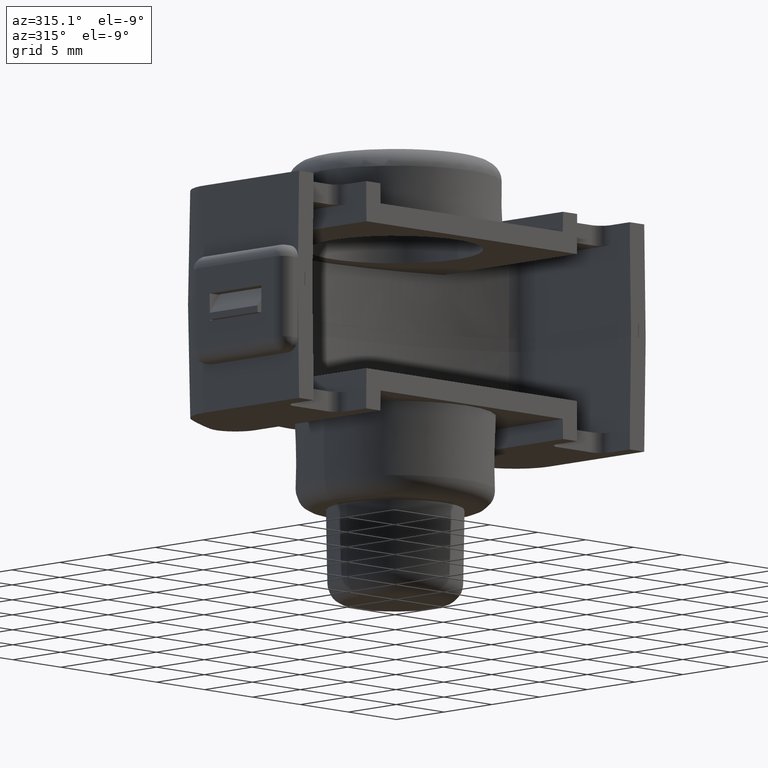
[diagram: clean part render]
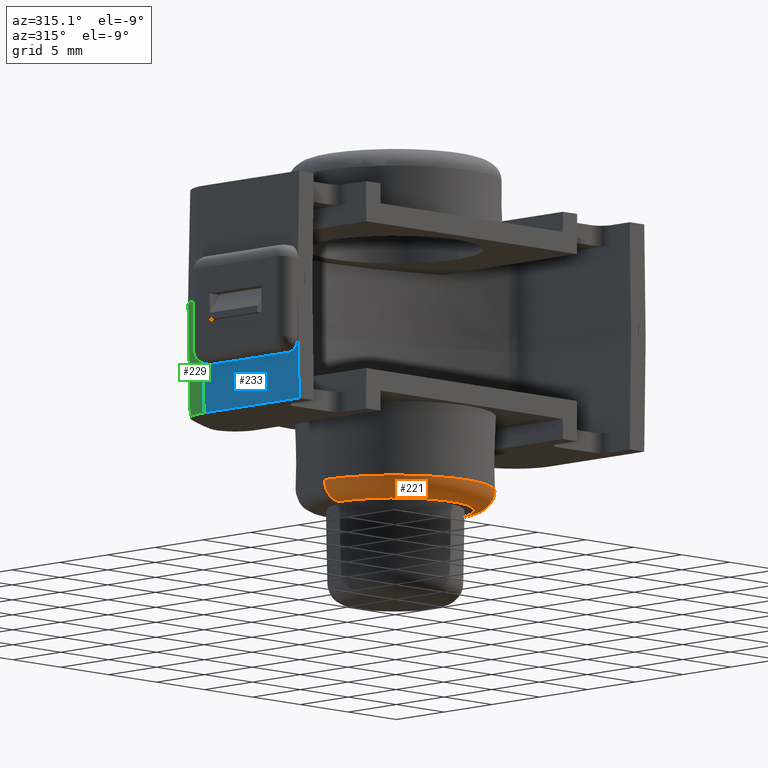
[diagram: same view with three faces highlighted in distinct colors, each labeled with its STEP entity id]
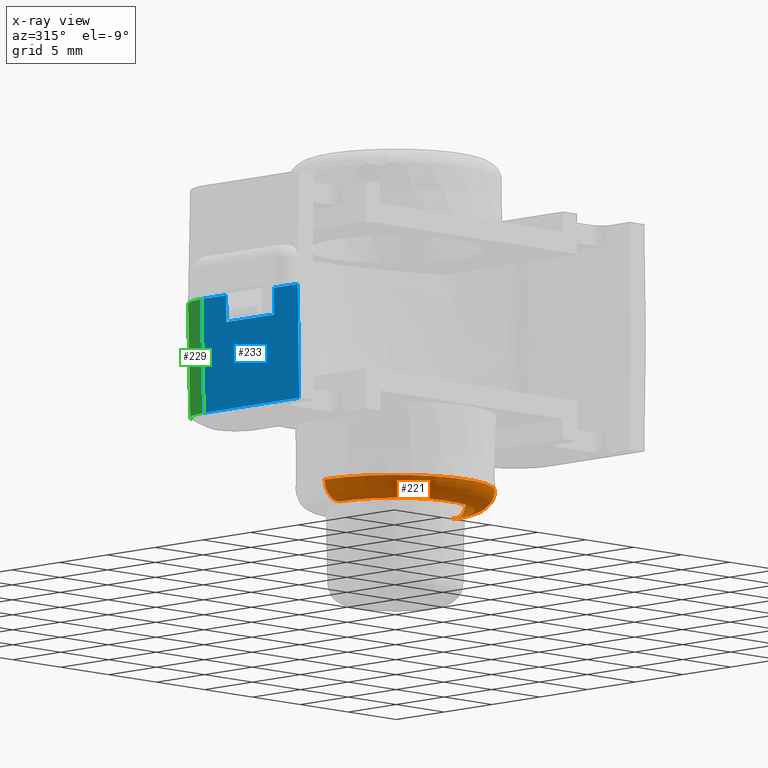
[diagram: x-ray of the same camera — body ghosted, the three highlighted faces saturated]
A machine part, auxiliary view with three faces highlighted in distinct colors.
The next image is the same camera in x-ray (body ghosted, the three faces saturated) — at least one of them is partly hidden behind the body in this view.
Their STEP definitions:

[orange] entity #221 — the highlighted toroidal blend (fillet) surface has major radius 5.8776 mm and minor (blend) radius 1.5 mm.
#221=ADVANCED_FACE('',(#554),#555,.T.);
#554=FACE_OUTER_BOUND('',#1026,.T.);
#555=TOROIDAL_SURFACE('',#1027,5.87758605343662,1.5);
#1026=EDGE_LOOP('',(#2268,#2269,#2270,#2271));
#1027=AXIS2_PLACEMENT_3D('',#2272,#2273,#2274);
#2268=ORIENTED_EDGE('',*,*,#3126,.F.);
#2269=ORIENTED_EDGE('',*,*,#3113,.F.);
#2270=ORIENTED_EDGE('',*,*,#3127,.F.);
#2271=ORIENTED_EDGE('',*,*,#3128,.F.);
#2272=CARTESIAN_POINT('',(0.0,-1.7347234759768E-15,-24.5));
#2273=DIRECTION('',(0.0,-1.22464679914735E-16,-1.0));
#2274=DIRECTION('',(1.0,0.0,0.0));
#3113=EDGE_CURVE('',#3825,#3821,#3827,.T.);
#3126=EDGE_CURVE('',#3821,#3852,#3853,.T.);
#3127=EDGE_CURVE('',#3854,#3825,#3855,.T.);
#3128=EDGE_CURVE('',#3852,#3854,#3856,.T.);
#3821=VERTEX_POINT('',#5041);
#3825=VERTEX_POINT('',#5046);
#3827=CIRCLE('',#5049,7.3773575961712);
#3852=VERTEX_POINT('',#5080);
#3853=CIRCLE('',#5081,1.5);
#3854=VERTEX_POINT('',#5082);
#3855=CIRCLE('',#5083,1.5);
#3856=CIRCLE('',#5084,5.87758605343662);
#5041=CARTESIAN_POINT('',(7.3773575961712,-8.34463694397286E-16,-24.526178609656));
#5046=CARTESIAN_POINT('',(-7.3773575961712,-1.7347234759768E-15,-24.526178609656));
#5049=AXIS2_PLACEMENT_3D('',#6032,#6033,#6034);
#5080=CARTESIAN_POINT('',(5.87758605343662,-1.7347234759768E-15,-26.0));
#5081=AXIS2_PLACEMENT_3D('',#6059,#6060,#6061);
#5082=CARTESIAN_POINT('',(-5.87758605343662,-2.63821719055434E-15,-26.0));
#5083=AXIS2_PLACEMENT_3D('',#6062,#6063,#6064);
#5084=AXIS2_PLACEMENT_3D('',#6065,#6066,#6067);
#6032=CARTESIAN_POINT('',(0.0,-1.7347234759768E-15,-24.526178609656));
#6033=DIRECTION('',(0.0,1.22464679914735E-16,1.0));
#6034=DIRECTION('',(-1.0,0.0,0.0));
#6059=CARTESIAN_POINT('',(5.87758605343662,-1.01492678127138E-15,-24.5));
#6060=DIRECTION('',(-1.22464679914735E-16,1.0,-1.22464679914735E-16));
#6061=DIRECTION('',(1.0,1.22464679914735E-16,-1.49975978266186E-32));
#6062=CARTESIAN_POINT('',(-5.87758605343662,-2.45452017068223E-15,-24.5));
#6063=DIRECTION('',(-1.22464679914735E-16,1.0,-1.22464679914735E-16));
#6064=DIRECTION('',(-1.0,-1.22464679914735E-16,1.49975978266186E-32));
#6065=CARTESIAN_POINT('',(0.0,-1.7347234759768E-15,-26.0));
#6066=DIRECTION('',(0.0,-1.22464679914735E-16,-1.0));
#6067=DIRECTION('',(1.0,0.0,0.0));

[blue] entity #233 — the highlighted planar face has unit normal (0.9998, 0, 0.0175).
#233=ADVANCED_FACE('',(#578),#579,.F.);
#578=FACE_OUTER_BOUND('',#1086,.T.);
#579=PLANE('',#1087);
#1086=EDGE_LOOP('',(#2365,#2366,#2367,#2368,#2369,#2370,#2371,#2372));
#1087=AXIS2_PLACEMENT_3D('',#2373,#2374,#2375);
#2365=ORIENTED_EDGE('',*,*,#3184,.F.);
#2366=ORIENTED_EDGE('',*,*,#3185,.T.);
#2367=ORIENTED_EDGE('',*,*,#3153,.T.);
#2368=ORIENTED_EDGE('',*,*,#3186,.F.);
#2369=ORIENTED_EDGE('',*,*,#3187,.F.);
#2370=ORIENTED_EDGE('',*,*,#3188,.T.);
#2371=ORIENTED_EDGE('',*,*,#3165,.T.);
#2372=ORIENTED_EDGE('',*,*,#3173,.T.);
#2373=CARTESIAN_POINT('',(-18.0,-8.0,-20.5));
#2374=DIRECTION('',(0.999847695156391,7.15156741356476E-17,0.0174524064372835));
#2375=DIRECTION('',(-0.0174524064372835,1.22446027950813E-16,0.999847695156391));
#3153=EDGE_CURVE('',#3903,#3901,#3904,.F.);
#3165=EDGE_CURVE('',#3926,#3924,#3927,.F.);
#3173=EDGE_CURVE('',#3924,#3939,#3941,.T.);
#3184=EDGE_CURVE('',#3959,#3939,#3960,.F.);
#3185=EDGE_CURVE('',#3959,#3903,#3961,.F.);
#3186=EDGE_CURVE('',#3962,#3901,#3963,.F.);
#3187=EDGE_CURVE('',#3964,#3962,#3965,.F.);
#3188=EDGE_CURVE('',#3964,#3926,#3966,.F.);
#3901=VERTEX_POINT('',#5148);
#3903=VERTEX_POINT('',#5151);
#3904=LINE('',#5152,#5153);
#3924=VERTEX_POINT('',#5190);
#3926=VERTEX_POINT('',#5204);
#3927=LINE('',#5205,#5206);
#3939=VERTEX_POINT('',#5229);
#3941=B_SPLINE_CURVE_WITH_KNOTS('',3,(#5242,#5243,#5244,#5245,#5246,#5247,#5248),.UNSPECIFIED.,.F.,.F.,(4,3,4),(0.0,0.00423322226499349,0.00850170459350305),.UNSPECIFIED.);
#3959=VERTEX_POINT('',#5297);
#3960=LINE('',#5298,#5299);
#3961=LINE('',#5300,#5301);
#3962=VERTEX_POINT('',#5302);
#3963=LINE('',#5303,#5304);
#3964=VERTEX_POINT('',#5305);
#3965=LINE('',#5306,#5307);
#3966=LINE('',#5308,#5309);
#5148=CARTESIAN_POINT('',(-18.1483680518898,-5.5,-12.0));
#5151=CARTESIAN_POINT('',(-18.1483680518898,-8.0,-12.0));
#5152=CARTESIAN_POINT('',(-18.1483680518898,-22.0,-12.0));
#5153=VECTOR('',#6106,1000.0);
#5190=CARTESIAN_POINT('',(-18.1483680518898,2.03685358379394,-12.0));
#5204=CARTESIAN_POINT('',(-18.1483680518898,-0.5,-12.0));
#5205=CARTESIAN_POINT('',(-18.1483680518898,-22.0,-12.0));
#5206=VECTOR('',#6124,1000.0);
#5229=CARTESIAN_POINT('',(-18.0,1.95337956964992,-20.5));
#5242=CARTESIAN_POINT('',(-18.1483680518898,2.03685358379394,-12.0));
#5243=CARTESIAN_POINT('',(-18.1237425963382,2.02302300281596,-13.410791403691));
#5244=CARTESIAN_POINT('',(-18.0991171428276,2.0091804860483,-14.821582690457));
#5245=CARTESIAN_POINT('',(-18.0744916913738,1.99532597142232,-16.2323738593849));
#5246=CARTESIAN_POINT('',(-18.0496611254876,1.98135605745393,-17.6549160262772));
#5247=CARTESIAN_POINT('',(-18.0248305616908,1.9673739449259,-19.0774580734643));
#5248=CARTESIAN_POINT('',(-18.0,1.95337956964992,-20.5));
#5297=CARTESIAN_POINT('',(-18.0,-8.0,-20.5));
#5298=CARTESIAN_POINT('',(-18.0,-22.0,-20.5));
#5299=VECTOR('',#6141,1000.0);
#5300=CARTESIAN_POINT('',(-18.0,-8.0,-20.5));
#5301=VECTOR('',#6142,1000.0);
#5302=CARTESIAN_POINT('',(-18.1134579220334,-5.5,-14.0));
#5303=CARTESIAN_POINT('',(-18.0,-5.5,-20.5));
#5304=VECTOR('',#6143,1000.0);
#5305=CARTESIAN_POINT('',(-18.1134579220334,-0.5,-14.0));
#5306=CARTESIAN_POINT('',(-18.1134579220334,-8.0,-14.0));
#5307=VECTOR('',#6144,1000.0);
#5308=CARTESIAN_POINT('',(-18.0,-0.5,-20.5));
#5309=VECTOR('',#6145,1000.0);
#6106=DIRECTION('',(6.93889390390723E-17,-1.0,1.22464679914735E-16));
#6124=DIRECTION('',(6.93889390390723E-17,-1.0,1.22464679914735E-16));
#6141=DIRECTION('',(6.93889390390723E-17,-1.0,1.22464679914735E-16));
#6142=DIRECTION('',(0.0174524064372835,-1.22446027950813E-16,-0.999847695156391));
#6143=DIRECTION('',(0.0174524064372835,-1.22446027950813E-16,-0.999847695156391));
#6144=DIRECTION('',(-6.93889390390723E-17,1.0,-1.22464679914735E-16));
#6145=DIRECTION('',(0.0174524064372835,-1.22446027950813E-16,-0.999847695156391));

[green] entity #229 — the highlighted face is a freeform B-spline surface patch.
#229=ADVANCED_FACE('',(#570),#571,.T.);
#570=FACE_OUTER_BOUND('',#1042,.T.);
#571=(B_SPLINE_SURFACE(3,2,((#1044,#1045,#1046),(#1047,#1048,#1049),(#1050,#1051,#1052),(#1053,#1054,#1055)),.UNSPECIFIED.,.F.,.F.,.F.)B_SPLINE_SURFACE_WITH_KNOTS((4,4),(3,3),(0.0509417372661507,0.0594555019583877),(0.0,1.0),.UNSPECIFIED.)RATIONAL_B_SPLINE_SURFACE(((1.0,0.87193956049328,1.0),(1.0,0.871697702394799,1.0),(1.0,0.871454467169783,1.0),(1.0,0.871209830894502,1.0)))BOUNDED_SURFACE()REPRESENTATION_ITEM('')GEOMETRIC_REPRESENTATION_ITEM()SURFACE());
#1042=EDGE_LOOP('',(#2339,#2340,#2341,#2342));
#1044=CARTESIAN_POINT('',(-16.4702710948947,5.02522093090486,-11.9880563619915));
#1045=CARTESIAN_POINT('',(-18.1482403434445,4.00220438375892,-12.0073164119262));
#1046=CARTESIAN_POINT('',(-18.1485765288668,2.03697067201106,-11.9880563619914));
#1047=CARTESIAN_POINT('',(-16.4177920646039,4.99920488846986,-14.8254094092535));
#1048=CARTESIAN_POINT('',(-18.0986996421917,3.97665540349673,-14.845501285434));
#1049=CARTESIAN_POINT('',(-18.0990503472026,2.00915504325975,-14.8254094092514));
#1050=CARTESIAN_POINT('',(-16.3652974573965,4.97314406494371,-17.6627619928907));
#1051=CARTESIAN_POINT('',(-18.0491725235018,3.95107696614489,-17.6829080149849));
#1052=CARTESIAN_POINT('',(-18.0495241736309,1.98129113734614,-17.6627619928886));
#1053=CARTESIAN_POINT('',(-16.3127870243327,4.94703794558657,-20.5001140869506));
#1054=CARTESIAN_POINT('',(-17.9996594728837,3.92546908445383,-20.5195087854216));
#1055=CARTESIAN_POINT('',(-17.9999980086049,1.95337844730995,-20.5001140869505));
#2339=ORIENTED_EDGE('',*,*,#3164,.F.);
#2340=ORIENTED_EDGE('',*,*,#3171,.F.);
#2341=ORIENTED_EDGE('',*,*,#3172,.F.);
#2342=ORIENTED_EDGE('',*,*,#3173,.F.);
#3164=EDGE_CURVE('',#3922,#3924,#3925,.T.);
#3171=EDGE_CURVE('',#3937,#3922,#3938,.T.);
#3172=EDGE_CURVE('',#3939,#3937,#3940,.T.);
#3173=EDGE_CURVE('',#3924,#3939,#3941,.T.);
#3922=VERTEX_POINT('',#5188);
#3924=VERTEX_POINT('',#5190);
#3925=B_SPLINE_CURVE_WITH_KNOTS('',3,(#5191,#5192,#5193,#5194,#5195,#5196,#5197,#5198,#5199,#5200,#5201,#5202,#5203),.UNSPECIFIED.,.F.,.F.,(4,2,2,1,2,2,4),(0.0,0.000891359895009292,0.00133703984251394,0.00178271979001859,0.00222839973752323,0.00267407968502788,0.00356543958003717),.UNSPECIFIED.);
#3937=VERTEX_POINT('',#5221);
#3938=B_SPLINE_CURVE_WITH_KNOTS('',3,(#5222,#5223,#5224,#5225,#5226,#5227,#5228),.UNSPECIFIED.,.F.,.F.,(4,3,4),(0.0,0.00700000000067198,0.00850181312088061),.UNSPECIFIED.);
#3939=VERTEX_POINT('',#5229);
#3940=B_SPLINE_CURVE_WITH_KNOTS('',3,(#5230,#5231,#5232,#5233,#5234,#5235,#5236,#5237,#5238,#5239,#5240,#5241),.UNSPECIFIED.,.F.,.F.,(4,2,2,2,2,4),(0.0,0.000894004522320041,0.00134100678348006,0.00178800904464008,0.00268201356696012,0.00357601808928016),.UNSPECIFIED.);
#3941=B_SPLINE_CURVE_WITH_KNOTS('',3,(#5242,#5243,#5244,#5245,#5246,#5247,#5248),.UNSPECIFIED.,.F.,.F.,(4,3,4),(0.0,0.00423322226499349,0.00850170459350305),.UNSPECIFIED.);
#5188=CARTESIAN_POINT('',(-16.4700501880172,5.02511141794015,-12.0));
#5190=CARTESIAN_POINT('',(-18.1483680518898,2.03685358379394,-12.0));
#5191=CARTESIAN_POINT('',(-16.4700501880172,5.02511141794015,-12.0));
#5192=CARTESIAN_POINT('',(-16.7274189333441,4.8682618831942,-12.0));
#5193=CARTESIAN_POINT('',(-16.9592890257388,4.68210439825422,-12.0));
#5194=CARTESIAN_POINT('',(-17.2700295521247,4.360266398453,-12.0));
#5195=CARTESIAN_POINT('',(-17.3679705152572,4.24488344477316,-12.0));
#5196=CARTESIAN_POINT('',(-17.5465697982878,4.00466030352424,-12.0));
#5197=CARTESIAN_POINT('',(-17.7084230196921,3.75490642455334,-12.0));
#5198=CARTESIAN_POINT('',(-17.8375225273069,3.48651132339455,-12.0));
#5199=CARTESIAN_POINT('',(-17.9498016948895,3.20854321021544,-12.0));
#5200=CARTESIAN_POINT('',(-17.9972091132949,3.06511875060286,-12.0));
#5201=CARTESIAN_POINT('',(-18.1100724220894,2.63290291242369,-12.0));
#5202=CARTESIAN_POINT('',(-18.1483680518899,2.33825104873686,-12.0));
#5203=CARTESIAN_POINT('',(-18.1483680518898,2.03685358379394,-12.0));
#5221=CARTESIAN_POINT('',(-16.312789135722,4.94703899528615,-20.5));
#5222=CARTESIAN_POINT('',(-16.312789135722,4.94703899528615,-20.5));
#5223=CARTESIAN_POINT('',(-16.3559625517885,4.96850311667543,-18.1671648594194));
#5224=CARTESIAN_POINT('',(-16.3991252723722,4.98993661963489,-15.8343292389617));
#5225=CARTESIAN_POINT('',(-16.4422774362287,5.01133979081355,-13.5014931451677));
#5226=CARTESIAN_POINT('',(-16.4515355056351,5.01593172842641,-13.0009954518908));
#5227=CARTESIAN_POINT('',(-16.4607930891126,5.02052226986758,-12.5004977368136));
#5228=CARTESIAN_POINT('',(-16.4700501880172,5.0251114179402,-12.0));
#5229=CARTESIAN_POINT('',(-18.0,1.95337956964992,-20.5));
#5230=CARTESIAN_POINT('',(-18.0,1.95337956964992,-20.5));
#5231=CARTESIAN_POINT('',(-18.0,2.25567128574872,-20.5));
#5232=CARTESIAN_POINT('',(-17.9614798589767,2.55140320582135,-20.5));
#5233=CARTESIAN_POINT('',(-17.84769591264,2.98546391739343,-20.5));
#5234=CARTESIAN_POINT('',(-17.7998515334893,3.12954265327232,-20.5));
#5235=CARTESIAN_POINT('',(-17.6870301762332,3.40772172124484,-20.5));
#5236=CARTESIAN_POINT('',(-17.6221465121798,3.54211561765137,-20.5));
#5237=CARTESIAN_POINT('',(-17.4026256258852,3.93151467847706,-20.5));
#5238=CARTESIAN_POINT('',(-17.2200379593142,4.17594224977088,-20.5));
#5239=CARTESIAN_POINT('',(-16.8041842826367,4.60453816057683,-20.5));
#5240=CARTESIAN_POINT('',(-16.5713880486738,4.79049231353576,-20.5));
#5241=CARTESIAN_POINT('',(-16.312789135722,4.94703899528615,-20.5));
#5242=CARTESIAN_POINT('',(-18.1483680518898,2.03685358379394,-12.0));
#5243=CARTESIAN_POINT('',(-18.1237425963382,2.02302300281596,-13.410791403691));
#5244=CARTESIAN_POINT('',(-18.0991171428276,2.0091804860483,-14.821582690457));
#5245=CARTESIAN_POINT('',(-18.0744916913738,1.99532597142232,-16.2323738593849));
#5246=CARTESIAN_POINT('',(-18.0496611254876,1.98135605745393,-17.6549160262772));
#5247=CARTESIAN_POINT('',(-18.0248305616908,1.9673739449259,-19.0774580734643));
#5248=CARTESIAN_POINT('',(-18.0,1.95337956964992,-20.5));